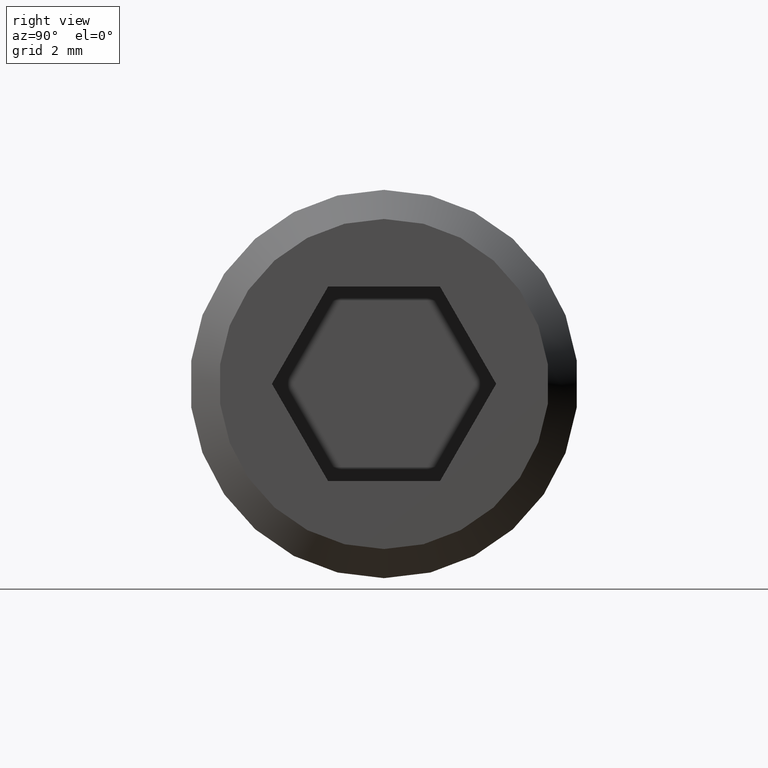
[diagram: clean part render]
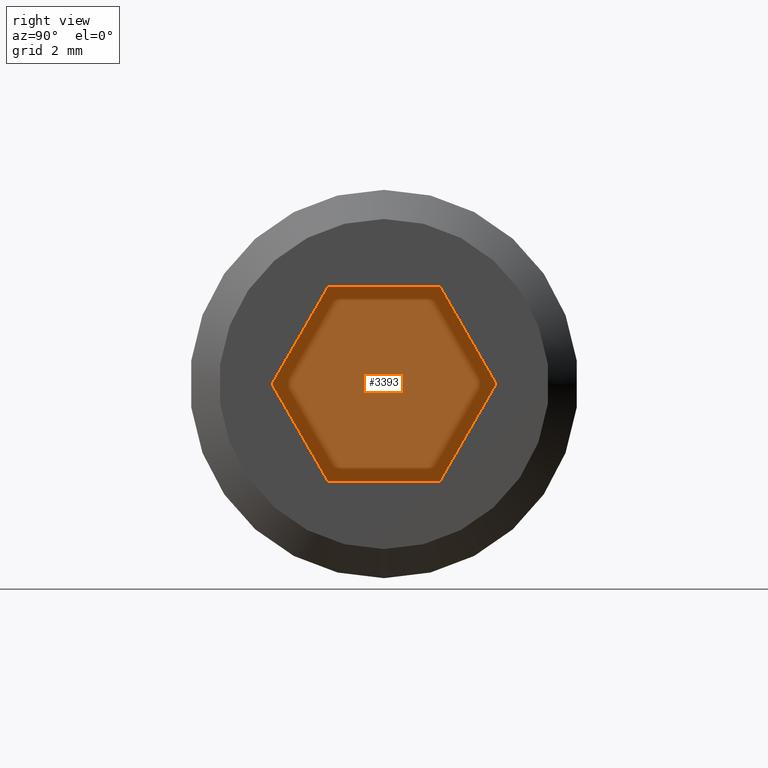
[diagram: same view with one face highlighted and labeled with its STEP entity id]
A machine part, right view. The second image highlights one B-rep face of the part: STEP entity #3393.
In plain terms, the highlighted planar face has unit normal (1, -0, 0).
Its self-contained STEP definition (entity closure, byte-faithful):
#440 = LINE ( 'NONE', #11098, #7944 ) ;
#502 = DIRECTION ( 'NONE',  ( 0.0000000000000000000, -0.4999999999999997200, 0.8660254037844388200 ) ) ;
#720 = LINE ( 'NONE', #2330, #1420 ) ;
#1100 = DIRECTION ( 'NONE',  ( 0.0000000000000000000, 0.4999999999999995600, -0.8660254037844389300 ) ) ;
#1212 = EDGE_CURVE ( 'NONE', #4758, #5736, #440, .T. ) ;
#1266 = ORIENTED_EDGE ( 'NONE', *, *, #2422, .T. ) ;
#1420 = VECTOR ( 'NONE', #10403, 1000.000000000000100 ) ;
#1766 = VERTEX_POINT ( 'NONE', #6729 ) ;
#1983 = DIRECTION ( 'NONE',  ( 0.0000000000000000000, 0.4999999999999999400, 0.8660254037844386000 ) ) ;
#2243 = VERTEX_POINT ( 'NONE', #9139 ) ;
#2330 = CARTESIAN_POINT ( 'NONE',  ( 5.000000000000000000, -1.154700538379251000, 1.999999999999999600 ) ) ;
#2376 = LINE ( 'NONE', #7774, #11424 ) ;
#2422 = EDGE_CURVE ( 'NONE', #5736, #2243, #720, .T. ) ;
#2578 = VERTEX_POINT ( 'NONE', #10760 ) ;
#2805 = FACE_OUTER_BOUND ( 'NONE', #4866, .T. ) ;
#3231 = ORIENTED_EDGE ( 'NONE', *, *, #1212, .T. ) ;
#3393 = ADVANCED_FACE ( 'NONE', ( #2805 ), #3575, .T. ) ;
#3575 = PLANE ( 'NONE',  #11167 ) ;
#3722 = ORIENTED_EDGE ( 'NONE', *, *, #5648, .T. ) ;
#4264 = CARTESIAN_POINT ( 'NONE',  ( 5.000000000000000000, -1.154700538379252400, -2.000000000000000000 ) ) ;
#4758 = VERTEX_POINT ( 'NONE', #6382 ) ;
#4866 = EDGE_LOOP ( 'NONE', ( #1266, #8971, #7860, #6882, #3722, #3231 ) ) ;
#4982 = EDGE_CURVE ( 'NONE', #10561, #2578, #5230, .T. ) ;
#5230 = LINE ( 'NONE', #4264, #9896 ) ;
#5644 = CARTESIAN_POINT ( 'NONE',  ( 5.000000000000000000, -2.309401076758502500, 1.256016596573813500E-016 ) ) ;
#5648 = EDGE_CURVE ( 'NONE', #1766, #4758, #2376, .T. ) ;
#5704 = CARTESIAN_POINT ( 'NONE',  ( 5.000000000000000000, 1.154700538379252400, -2.000000000000000000 ) ) ;
#5736 = VERTEX_POINT ( 'NONE', #7868 ) ;
#6382 = CARTESIAN_POINT ( 'NONE',  ( 5.000000000000000000, 1.154700538379252100, 1.999999999999999600 ) ) ;
#6576 = LINE ( 'NONE', #5644, #9976 ) ;
#6729 = CARTESIAN_POINT ( 'NONE',  ( 5.000000000000000000, 2.309401076758503400, -1.190619091596349400E-015 ) ) ;
#6882 = ORIENTED_EDGE ( 'NONE', *, *, #10495, .T. ) ;
#7487 = DIRECTION ( 'NONE',  ( 0.0000000000000000000, -1.000000000000000000, 0.0000000000000000000 ) ) ;
#7588 = CARTESIAN_POINT ( 'NONE',  ( 5.000000000000000000, -1.154700538379252400, -2.000000000000000000 ) ) ;
#7774 = CARTESIAN_POINT ( 'NONE',  ( 5.000000000000000000, 2.309401076758503400, -1.190619091596349400E-015 ) ) ;
#7860 = ORIENTED_EDGE ( 'NONE', *, *, #4982, .T. ) ;
#7868 = CARTESIAN_POINT ( 'NONE',  ( 5.000000000000000000, -1.154700538379251000, 1.999999999999999600 ) ) ;
#7944 = VECTOR ( 'NONE', #7487, 1000.000000000000000 ) ;
#8284 = VECTOR ( 'NONE', #1983, 1000.000000000000100 ) ;
#8434 = LINE ( 'NONE', #5704, #8284 ) ;
#8963 = DIRECTION ( 'NONE',  ( 0.0000000000000000000, 0.0000000000000000000, -1.000000000000000000 ) ) ;
#8971 = ORIENTED_EDGE ( 'NONE', *, *, #9707, .T. ) ;
#9139 = CARTESIAN_POINT ( 'NONE',  ( 5.000000000000000000, -2.309401076758502500, 1.256016596573813500E-016 ) ) ;
#9707 = EDGE_CURVE ( 'NONE', #2243, #10561, #6576, .T. ) ;
#9896 = VECTOR ( 'NONE', #11523, 1000.000000000000000 ) ;
#9976 = VECTOR ( 'NONE', #1100, 1000.000000000000000 ) ;
#10403 = DIRECTION ( 'NONE',  ( 0.0000000000000000000, -0.4999999999999999400, -0.8660254037844386000 ) ) ;
#10495 = EDGE_CURVE ( 'NONE', #2578, #1766, #8434, .T. ) ;
#10561 = VERTEX_POINT ( 'NONE', #7588 ) ;
#10760 = CARTESIAN_POINT ( 'NONE',  ( 5.000000000000000000, 1.154700538379252400, -2.000000000000000000 ) ) ;
#10777 = DIRECTION ( 'NONE',  ( 1.000000000000000000, -0.0000000000000000000, 0.0000000000000000000 ) ) ;
#10813 = CARTESIAN_POINT ( 'NONE',  ( 5.000000000000000000, -3.464101615137753900, -2.000000000000000000 ) ) ;
#11098 = CARTESIAN_POINT ( 'NONE',  ( 5.000000000000000000, 1.154700538379252100, 1.999999999999999600 ) ) ;
#11167 = AXIS2_PLACEMENT_3D ( 'NONE', #10813, #10777, #8963 ) ;
#11424 = VECTOR ( 'NONE', #502, 1000.000000000000000 ) ;
#11523 = DIRECTION ( 'NONE',  ( 0.0000000000000000000, 1.000000000000000000, 0.0000000000000000000 ) ) ;